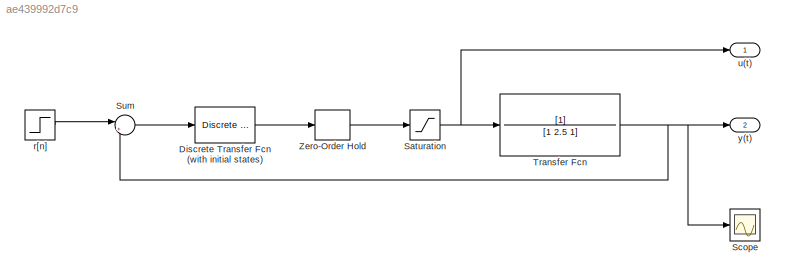
MODEL slx_ae439992d7c9
KIND model
CONFIG AbsTol = auto
CONFIG EnableMultiTasking = off
CONFIG FixedStep = auto
CONFIG MaxStep = auto
CONFIG MinStep = auto
CONFIG RelTol = 1e-3
CONFIG SampleTimeConstraint = Unconstrained
CONFIG SolverName = VariableStepAuto
CONFIG StartTime = 0.0
CONFIG StopTime = 24
BLOCK [Reference] Discrete Transfer Fcn (with initial states)  REF=simulink_extras/Additional
Discrete/Discrete
Transfer Fcn
(with initial states)
  SourceBlock = simulink_extras/Additional\nDiscrete/Discrete\nTransfer Fcn\n(with initial states)
  SourceType = Discrete Transfer Function with Initial States
BLOCK [Saturate] Saturation
  LowerLimit = 0
  UpperLimit = 5
BLOCK [Scope] Scope
  Floating = off
  NumInputPorts = 1
  ScopeSpecificationString = Simulink.scopes.TimeScopeBlockCfg('CurrentConfiguration', extmgr.ConfigurationSet(extmgr.Configuration('Core','General UI',true),extmgr.Configuration('Core','Source UI',true),extmgr.Configuration('Sources','WiredSimulink',true),extmgr.Configuration('Visuals','Time Domain',true,'SerializedDisplays',{struct('MinYLimReal','-0.32165','MaxYLimReal','2.89484','YLabelReal','','MinYLimMag','0.00000','MaxY...<+1332ch>
BLOCK [Sum] Sum
  Inputs = |+-
BLOCK [TransferFcn] Transfer Fcn
  Denominator = [1 2.5 1]
BLOCK [ZeroOrderHold] Zero-Order Hold
  SampleTime = 0.1
BLOCK [Step] r[n]
  After = 2.5
  SampleTime = 0
  Time = 0
BLOCK [Outport] u(t)
  SignalName = u
BLOCK [Outport] y(t)
  Port = 2
  SignalName = y
LINE Discrete Transfer Fcn (with initial states):1 -> Zero-Order Hold:1
NET Saturation:1 -> Transfer Fcn:1, u(t):1
LINE Sum:1 -> Discrete Transfer Fcn (with initial states):1
NET Transfer Fcn:1 -> Scope:1, Sum:2, y(t):1
LINE Zero-Order Hold:1 -> Saturation:1
LINE r[n]:1 -> Sum:1
note: NET lines group one-source signal fan-out (src -> all destinations, sorted); 1:1 wires keep LINE
